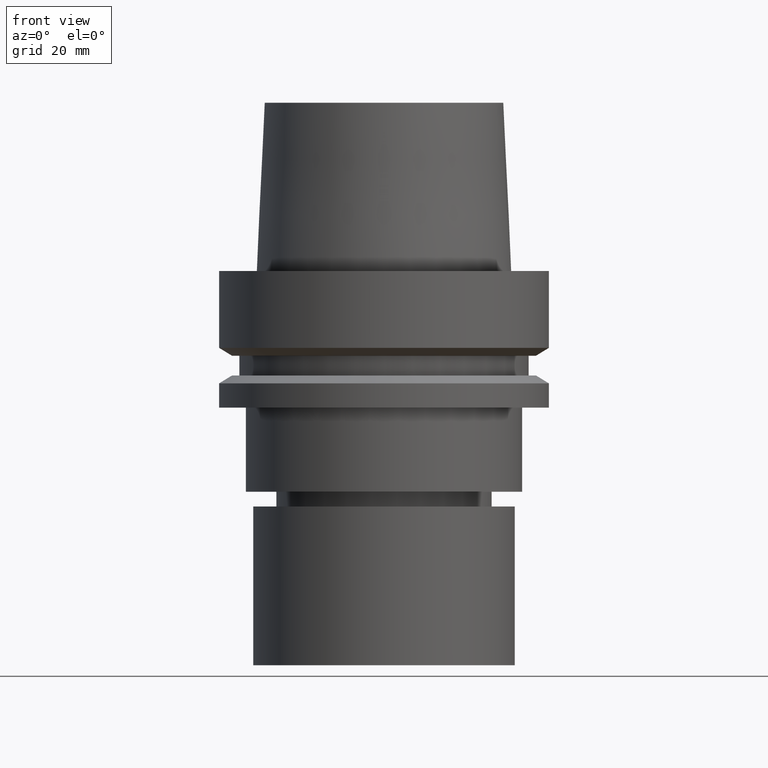
[diagram: clean part render]
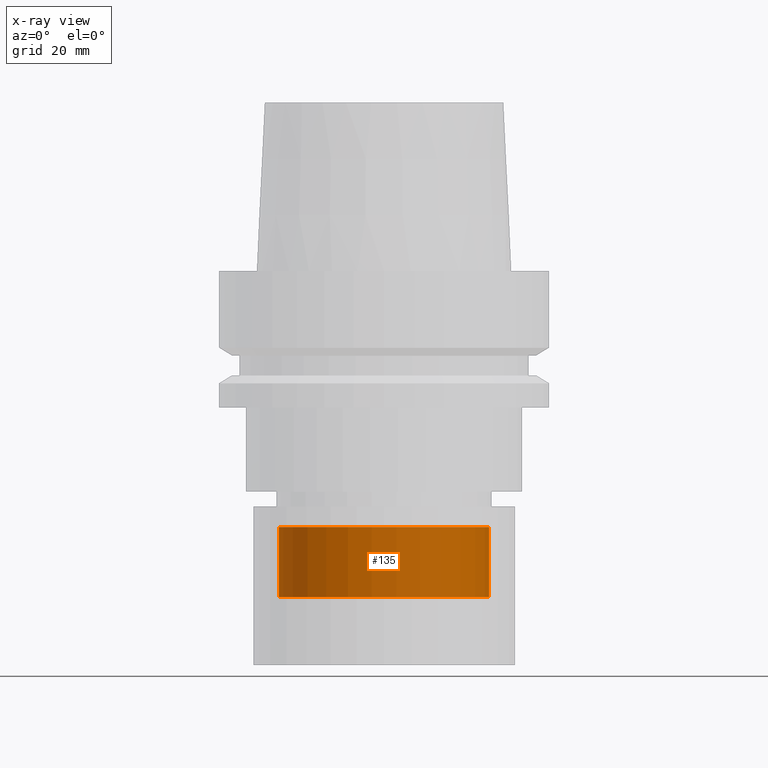
[diagram: x-ray — body ghosted, one internal face saturated and labeled with its STEP entity id]
A machine part, front view, then the same camera in x-ray: the body is ghosted and one INTERNAL B-rep face — a face not visible from any outside direction — is saturated and labeled: STEP entity #135.
In plain terms, the highlighted cylindrical surface (bore or boss wall) has radius 20 mm, axis along (-0, -0, 1).
Its self-contained STEP definition (entity closure, byte-faithful):
#81=EDGE_CURVE('Unnamed[1]',#211,#211,#212,.T.);
#119=EDGE_CURVE('Unnamed[1]',#269,#269,#270,.T.);
#135=ADVANCED_FACE('Unnamed[1]',(#293,#294),#295,.T.);
#211=VERTEX_POINT('',#389);
#212=CIRCLE('',#390,20.0000000000001);
#269=VERTEX_POINT('',#460);
#270=CIRCLE('',#461,20.0);
#293=FACE_BOUND('',#491,.T.);
#294=FACE_BOUND('',#492,.T.);
#295=CYLINDRICAL_SURFACE('',#493,20.0);
#389=CARTESIAN_POINT('',(3.80220648101174E-015,20.0000000000001,-62.0947441116734));
#390=AXIS2_PLACEMENT_3D('',#592,#593,#594);
#460=CARTESIAN_POINT('',(2.98391913945804E-015,20.0,-48.73109767707));
#461=AXIS2_PLACEMENT_3D('',#657,#658,#659);
#491=EDGE_LOOP('',(#682));
#492=EDGE_LOOP('',(#683));
#493=AXIS2_PLACEMENT_3D('',#684,#685,#686);
#592=CARTESIAN_POINT('',(3.80220648101174E-015,7.60441296202348E-015,-62.0947441116734));
#593=DIRECTION('',(-6.12323399573677E-017,-1.22464679914735E-016,1.0));
#594=DIRECTION('',(-1.23259516440783E-032,1.0,1.22464679914735E-016));
#657=CARTESIAN_POINT('',(2.98391913945804E-015,5.96783827891608E-015,-48.73109767707));
#658=DIRECTION('',(-6.12323399573677E-017,-1.22464679914735E-016,1.0));
#659=DIRECTION('',(-1.23259516440783E-032,1.0,1.22464679914735E-016));
#682=ORIENTED_EDGE('',*,*,#119,.F.);
#683=ORIENTED_EDGE('',*,*,#81,.T.);
#684=CARTESIAN_POINT('',(3.39306281023489E-015,6.78612562046978E-015,-55.4129208943717));
#685=DIRECTION('',(-6.12323399573677E-017,-1.22464679914735E-016,1.0));
#686=DIRECTION('',(-1.23259516440783E-032,1.0,1.22464679914735E-016));